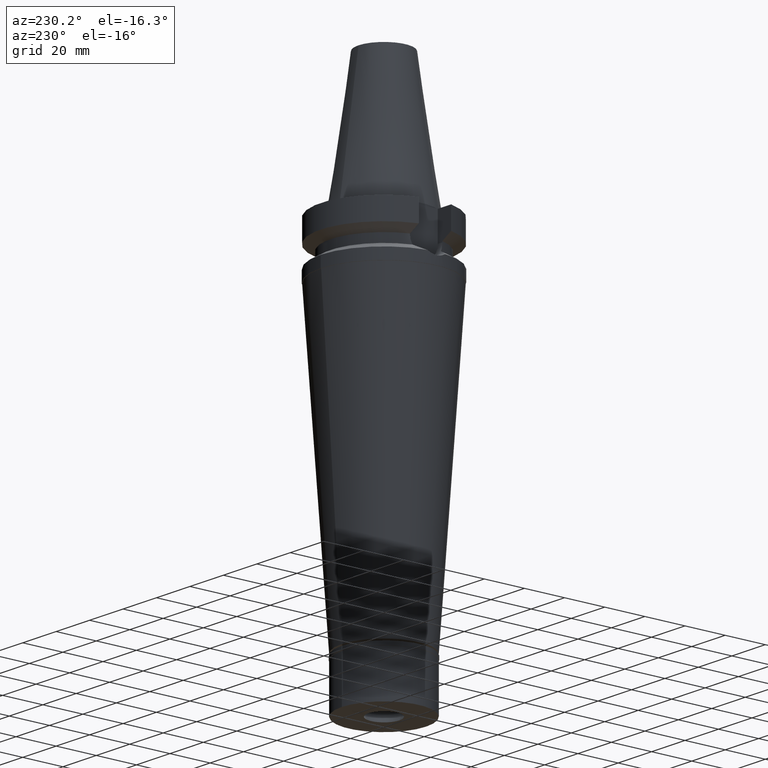
[diagram: clean part render]
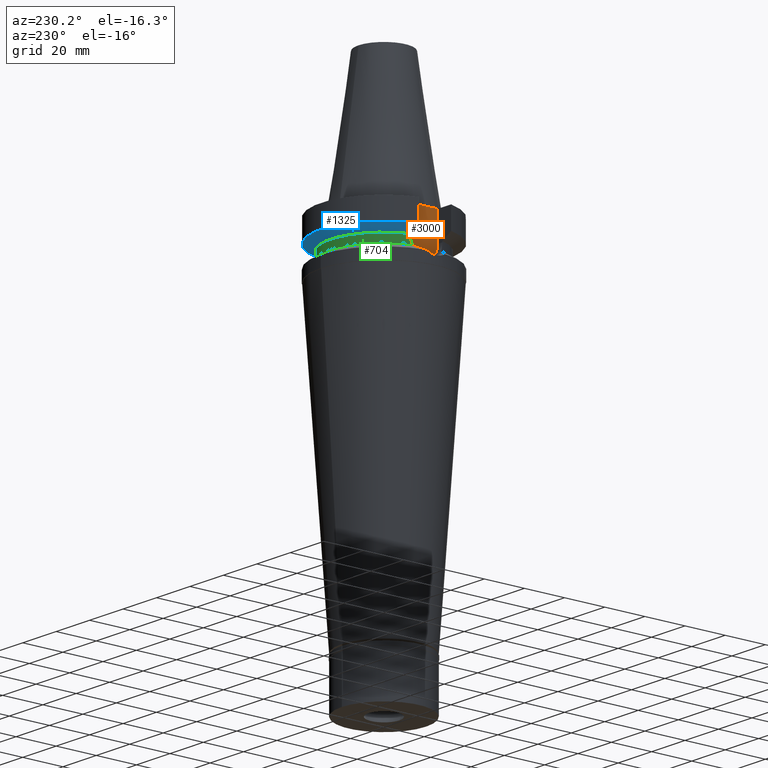
[diagram: same view with three faces highlighted in distinct colors, each labeled with its STEP entity id]
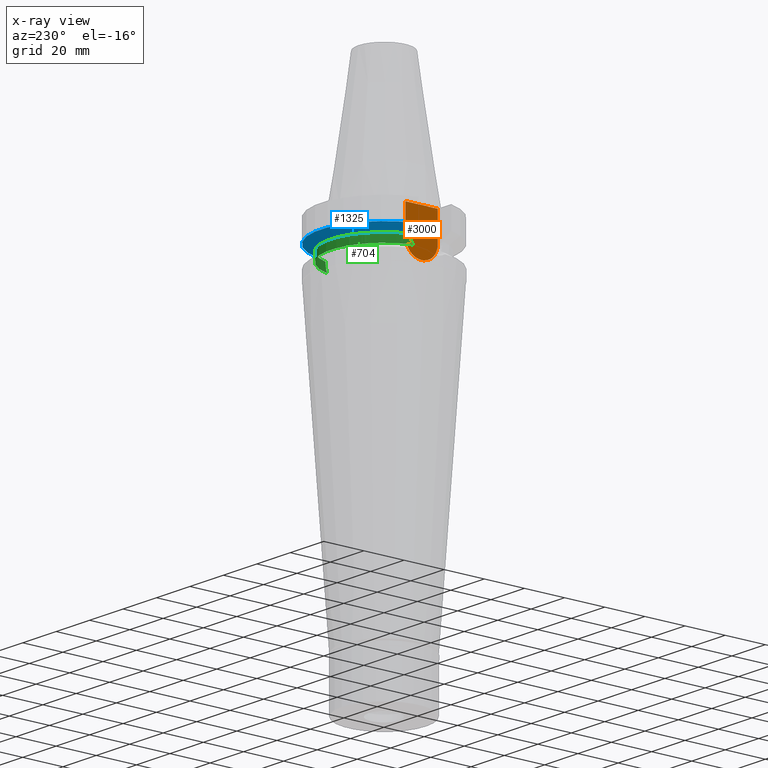
[diagram: x-ray of the same camera — body ghosted, the three highlighted faces saturated]
A machine part, auxiliary view with three faces highlighted in distinct colors.
The next image is the same camera in x-ray (body ghosted, the three faces saturated) — at least one of them is partly hidden behind the body in this view.
Their STEP definitions:

[orange] entity #3000 — the highlighted planar face has unit normal (-1, 0, 0).
#8 = CARTESIAN_POINT ( 'NONE',  ( -22.50000000000000000, 2.173748068486999793E-14, 0.0000000000000000000 ) ) ;
#51 = CARTESIAN_POINT ( 'NONE',  ( -22.50000000000000000, 1.807578675540999863E-14, -14.94999999999999929 ) ) ;
#72 = VECTOR ( 'NONE', #2554, 1000.000000000000000 ) ;
#79 = LINE ( 'NONE', #1552, #169 ) ;
#127 = AXIS2_PLACEMENT_3D ( 'NONE', #8, #459, #2849 ) ;
#169 = VECTOR ( 'NONE', #1756, 1000.000000000000000 ) ;
#459 = DIRECTION ( 'NONE',  ( -1.000000000000000000, 0.0000000000000000000, 0.0000000000000000000 ) ) ;
#640 = CARTESIAN_POINT ( 'NONE',  ( -22.50000000000000000, -8.050000000000000711, -1.000000000000000000 ) ) ;
#766 = VERTEX_POINT ( 'NONE', #2427 ) ;
#778 = DIRECTION ( 'NONE',  ( 1.000000000000000000, 0.0000000000000000000, 0.0000000000000000000 ) ) ;
#792 = LINE ( 'NONE', #1534, #2044 ) ;
#797 = DIRECTION ( 'NONE',  ( 0.0000000000000000000, 0.0000000000000000000, -1.000000000000000000 ) ) ;
#869 = EDGE_LOOP ( 'NONE', ( #971, #1440, #1310, #1805 ) ) ;
#897 = AXIS2_PLACEMENT_3D ( 'NONE', #51, #778, #797 ) ;
#971 = ORIENTED_EDGE ( 'NONE', *, *, #1486, .F. ) ;
#974 = PLANE ( 'NONE',  #127 ) ;
#1007 = EDGE_CURVE ( 'NONE', #766, #2276, #79, .T. ) ;
#1068 = CARTESIAN_POINT ( 'NONE',  ( -22.50000000000000000, 8.050000000000000711, -1.000000000000000000 ) ) ;
#1310 = ORIENTED_EDGE ( 'NONE', *, *, #1007, .F. ) ;
#1440 = ORIENTED_EDGE ( 'NONE', *, *, #2326, .F. ) ;
#1486 = EDGE_CURVE ( 'NONE', #2888, #1946, #792, .T. ) ;
#1534 = CARTESIAN_POINT ( 'NONE',  ( -22.50000000000000000, 8.050000000000000711, -14.94999999999999929 ) ) ;
#1552 = CARTESIAN_POINT ( 'NONE',  ( -22.50000000000000000, -8.050000000000000711, -1.000000000000000000 ) ) ;
#1605 = EDGE_CURVE ( 'NONE', #766, #1946, #3078, .T. ) ;
#1756 = DIRECTION ( 'NONE',  ( 0.0000000000000000000, 0.0000000000000000000, -1.000000000000000000 ) ) ;
#1758 = DIRECTION ( 'NONE',  ( 0.0000000000000000000, 0.0000000000000000000, 1.000000000000000000 ) ) ;
#1805 = ORIENTED_EDGE ( 'NONE', *, *, #1605, .T. ) ;
#1872 = CARTESIAN_POINT ( 'NONE',  ( -22.50000000000000000, 8.050000000000000711, -14.94999999999999929 ) ) ;
#1932 = FACE_OUTER_BOUND ( 'NONE', #869, .T. ) ;
#1946 = VERTEX_POINT ( 'NONE', #1068 ) ;
#1951 = CIRCLE ( 'NONE', #897, 8.050000000000000711 ) ;
#2044 = VECTOR ( 'NONE', #1758, 1000.000000000000000 ) ;
#2276 = VERTEX_POINT ( 'NONE', #2673 ) ;
#2326 = EDGE_CURVE ( 'NONE', #2276, #2888, #1951, .T. ) ;
#2427 = CARTESIAN_POINT ( 'NONE',  ( -22.50000000000000000, -8.050000000000000711, -1.000000000000000000 ) ) ;
#2554 = DIRECTION ( 'NONE',  ( 0.0000000000000000000, 1.000000000000000000, 0.0000000000000000000 ) ) ;
#2673 = CARTESIAN_POINT ( 'NONE',  ( -22.50000000000000000, -8.050000000000000711, -14.94999999999999929 ) ) ;
#2849 = DIRECTION ( 'NONE',  ( 0.0000000000000000000, 0.0000000000000000000, 1.000000000000000000 ) ) ;
#2888 = VERTEX_POINT ( 'NONE', #1872 ) ;
#3000 = ADVANCED_FACE ( 'NONE', ( #1932 ), #974, .T. ) ;
#3078 = LINE ( 'NONE', #640, #72 ) ;

[blue] entity #1325 — the highlighted conical surface has half-angle 60 deg.
#12 = EDGE_CURVE ( 'NONE', #904, #1028, #557, .T. ) ;
#205 = DIRECTION ( 'NONE',  ( 0.0000000000000000000, 0.0000000000000000000, 1.000000000000000000 ) ) ;
#259 = ORIENTED_EDGE ( 'NONE', *, *, #1166, .T. ) ;
#310 = CARTESIAN_POINT ( 'NONE',  ( 30.45402291365999758, 8.049999277899999583, -11.56551215646999964 ) ) ;
#425 = DIRECTION ( 'NONE',  ( 0.0000000000000000000, 0.0000000000000000000, -1.000000000000000000 ) ) ;
#498 = FACE_OUTER_BOUND ( 'NONE', #2585, .T. ) ;
#528 = AXIS2_PLACEMENT_3D ( 'NONE', #2633, #205, #1237 ) ;
#557 = B_SPLINE_CURVE_WITH_KNOTS ( 'NONE', 3,
 ( #1407, #1652, #1907, #1489 ),
 .UNSPECIFIED., .F., .F.,
 ( 4, 4 ),
 ( 0.0000000000000000000, 1.000000000000000000 ),
 .UNSPECIFIED. ) ;
#773 = DIRECTION ( 'NONE',  ( 0.0000000000000000000, 0.0000000000000000000, 1.000000000000000000 ) ) ;
#793 = AXIS2_PLACEMENT_3D ( 'NONE', #1902, #773, #1222 ) ;
#862 = ORIENTED_EDGE ( 'NONE', *, *, #1223, .F. ) ;
#904 = VERTEX_POINT ( 'NONE', #1080 ) ;
#909 = VERTEX_POINT ( 'NONE', #1769 ) ;
#1008 = CARTESIAN_POINT ( 'NONE',  ( 26.83754616961824979, 8.049990822617145270, -13.57774887560565880 ) ) ;
#1028 = VERTEX_POINT ( 'NONE', #2532 ) ;
#1080 = CARTESIAN_POINT ( 'NONE',  ( -25.24772216375000156, 8.050001586471001502, -14.45224487658000001 ) ) ;
#1166 = EDGE_CURVE ( 'NONE', #909, #2370, #2512, .T. ) ;
#1222 = DIRECTION ( 'NONE',  ( 0.0000000000000000000, 1.000000000000000000, 0.0000000000000000000 ) ) ;
#1223 = EDGE_CURVE ( 'NONE', #909, #1028, #3001, .T. ) ;
#1237 = DIRECTION ( 'NONE',  ( 0.0000000000000000000, 1.000000000000000000, 0.0000000000000000000 ) ) ;
#1325 = ADVANCED_FACE ( 'NONE', ( #498 ), #1389, .T. ) ;
#1389 = CONICAL_SURFACE ( 'NONE', #793, 29.00000000000000000, 1.047197551196400456 ) ;
#1391 = DIRECTION ( 'NONE',  ( -0.9527442516822307583, 0.3037735849057093818, 0.0000000000000000000 ) ) ;
#1407 = CARTESIAN_POINT ( 'NONE',  ( -25.24772216375000156, 8.050001586471001502, -14.45224487658000001 ) ) ;
#1489 = CARTESIAN_POINT ( 'NONE',  ( -30.45402162752999686, 8.050004143464001061, -11.56546833011000075 ) ) ;
#1560 = ORIENTED_EDGE ( 'NONE', *, *, #2184, .F. ) ;
#1652 = CARTESIAN_POINT ( 'NONE',  ( -26.83758148555827461, 8.050003176367949820, -13.57772735096166272 ) ) ;
#1769 = CARTESIAN_POINT ( 'NONE',  ( 30.45402291365999758, 8.049999277899999583, -11.56551215646999964 ) ) ;
#1902 = CARTESIAN_POINT ( 'NONE',  ( 0.0000000000000000000, 1.065333950388000029E-14, -13.00888132564000088 ) ) ;
#1907 = CARTESIAN_POINT ( 'NONE',  ( -28.57295871603884052, 8.050008281890470130, -12.61547480226907147 ) ) ;
#2087 = ORIENTED_EDGE ( 'NONE', *, *, #12, .T. ) ;
#2184 = EDGE_CURVE ( 'NONE', #904, #2370, #2255, .T. ) ;
#2244 = CARTESIAN_POINT ( 'NONE',  ( 28.57292329962934119, 8.049998556738891864, -12.61549605020568876 ) ) ;
#2255 = CIRCLE ( 'NONE', #3012, 26.50000000000000711 ) ;
#2265 = CARTESIAN_POINT ( 'NONE',  ( 25.24772413102000002, 8.049995416383998403, -14.45229202342000008 ) ) ;
#2370 = VERTEX_POINT ( 'NONE', #2655 ) ;
#2512 = B_SPLINE_CURVE_WITH_KNOTS ( 'NONE', 3,
 ( #310, #2244, #1008, #2265 ),
 .UNSPECIFIED., .F., .F.,
 ( 4, 4 ),
 ( 0.0000000000000000000, 1.000000000000000000 ),
 .UNSPECIFIED. ) ;
#2532 = CARTESIAN_POINT ( 'NONE',  ( -30.45402162752999686, 8.050004143464001061, -11.56546833011000075 ) ) ;
#2585 = EDGE_LOOP ( 'NONE', ( #862, #259, #1560, #2087 ) ) ;
#2633 = CARTESIAN_POINT ( 'NONE',  ( 0.0000000000000000000, 1.065333950388000029E-14, -11.56550565266999975 ) ) ;
#2655 = CARTESIAN_POINT ( 'NONE',  ( 25.24772413102000002, 8.049995416383998403, -14.45229202342000008 ) ) ;
#2796 = CARTESIAN_POINT ( 'NONE',  ( 0.0000000000000000000, 1.065333950388000029E-14, -14.45225699861000024 ) ) ;
#3001 = CIRCLE ( 'NONE', #528, 31.50000000000000000 ) ;
#3012 = AXIS2_PLACEMENT_3D ( 'NONE', #2796, #425, #1391 ) ;

[green] entity #704 — the highlighted cylindrical surface (partial cylindrical patch) has radius 26.5 mm, axis along (0, 0, -1).
#112 = CIRCLE ( 'NONE', #2794, 26.49999999999998224 ) ;
#163 = B_SPLINE_CURVE_WITH_KNOTS ( 'NONE', 3,
 ( #2175, #1748, #2722, #1557, #850, #1244, #502, #258, #1990, #983, #1942, #2538, #3141, #2674 ),
 .UNSPECIFIED., .F., .F.,
 ( 4, 2, 2, 1, 1, 2, 2, 4 ),
 ( 0.0000000000000000000, 0.2499999999999952260, 0.3749999999999935052, 0.4374999999999927280, 0.4687499999999922839, 0.4843749999999933942, 0.4999999999999945599, 1.000000000000000000 ),
 .UNSPECIFIED. ) ;
#258 = CARTESIAN_POINT ( 'NONE',  ( -25.31205759391836096, 7.845621557329947038, -16.75326793494481237 ) ) ;
#336 = VECTOR ( 'NONE', #1150, 1000.000000000000114 ) ;
#343 = ORIENTED_EDGE ( 'NONE', *, *, #2871, .F. ) ;
#398 = EDGE_CURVE ( 'NONE', #2280, #1113, #112, .T. ) ;
#425 = DIRECTION ( 'NONE',  ( 0.0000000000000000000, 0.0000000000000000000, -1.000000000000000000 ) ) ;
#430 = VERTEX_POINT ( 'NONE', #970 ) ;
#460 = CARTESIAN_POINT ( 'NONE',  ( 25.27269246206562414, 7.973290322419562592, -16.24535685341754387 ) ) ;
#461 = EDGE_CURVE ( 'NONE', #1929, #1113, #163, .T. ) ;
#468 = DIRECTION ( 'NONE',  ( 0.0000000000000000000, 0.0000000000000000000, 1.000000000000000000 ) ) ;
#478 = CARTESIAN_POINT ( 'NONE',  ( 25.33292553852030693, 7.777985707517056646, -17.02558215515331952 ) ) ;
#502 = CARTESIAN_POINT ( 'NONE',  ( -25.30215616128706202, 7.877576232114821053, -16.61085564858947095 ) ) ;
#625 = DIRECTION ( 'NONE',  ( 0.0000000000000000000, -1.000000000000000000, 0.0000000000000000000 ) ) ;
#704 = ADVANCED_FACE ( 'NONE', ( #865 ), #1871, .T. ) ;
#722 = CARTESIAN_POINT ( 'NONE',  ( 25.32419265906722927, 7.806329682139820036, -16.91574545217583392 ) ) ;
#739 = CARTESIAN_POINT ( 'NONE',  ( 25.32550226136657301, 7.802082245156339191, -16.93251888162851770 ) ) ;
#850 = CARTESIAN_POINT ( 'NONE',  ( -25.28049982587671352, 7.946985634402506271, -16.24435369772021076 ) ) ;
#865 = FACE_OUTER_BOUND ( 'NONE', #1610, .T. ) ;
#904 = VERTEX_POINT ( 'NONE', #1080 ) ;
#924 = ORIENTED_EDGE ( 'NONE', *, *, #2184, .T. ) ;
#946 = VECTOR ( 'NONE', #2880, 1000.000000000000114 ) ;
#964 = CARTESIAN_POINT ( 'NONE',  ( 25.48481820018459132, 7.266687417048629527, -18.43221401829459083 ) ) ;
#970 = CARTESIAN_POINT ( 'NONE',  ( 25.24772266958000344, 8.050000000000000711, -14.94999999999999929 ) ) ;
#983 = CARTESIAN_POINT ( 'NONE',  ( -25.31954463780457942, 7.821394976198594584, -16.85491936549410852 ) ) ;
#1080 = CARTESIAN_POINT ( 'NONE',  ( -25.24772216375000156, 8.050001586471001502, -14.45224487658000001 ) ) ;
#1113 = VERTEX_POINT ( 'NONE', #2232 ) ;
#1150 = DIRECTION ( 'NONE',  ( 2.936344683098950112E-06, -9.209448786821828654E-06, 0.9999999999532819261 ) ) ;
#1163 = LINE ( 'NONE', #1414, #946 ) ;
#1210 = CARTESIAN_POINT ( 'NONE',  ( 25.37572817766058364, 7.637723572221805313, -17.49814693646417751 ) ) ;
#1238 = EDGE_CURVE ( 'NONE', #2280, #430, #2622, .T. ) ;
#1244 = CARTESIAN_POINT ( 'NONE',  ( -25.29454717857531065, 7.902012029789332814, -16.48868902742409048 ) ) ;
#1391 = DIRECTION ( 'NONE',  ( -0.9527442516822307583, 0.3037735849057093818, 0.0000000000000000000 ) ) ;
#1414 = CARTESIAN_POINT ( 'NONE',  ( -25.24772216375000156, 8.050001586471001502, -14.45224487658000001 ) ) ;
#1446 = CARTESIAN_POINT ( 'NONE',  ( 25.39164478449751527, 7.584820969894079390, -17.65194245036779108 ) ) ;
#1557 = CARTESIAN_POINT ( 'NONE',  ( -25.27269574104415994, 7.971769475022838947, -16.08146184953483271 ) ) ;
#1610 = EDGE_LOOP ( 'NONE', ( #924, #343, #1699, #1703, #2493, #2602 ) ) ;
#1699 = ORIENTED_EDGE ( 'NONE', *, *, #1238, .F. ) ;
#1703 = ORIENTED_EDGE ( 'NONE', *, *, #398, .T. ) ;
#1709 = CARTESIAN_POINT ( 'NONE',  ( 25.34387967354898663, 7.742345491372086386, -17.15662736176078695 ) ) ;
#1748 = CARTESIAN_POINT ( 'NONE',  ( -25.24772266957999634, 8.050000000000013145, -15.27000127552675401 ) ) ;
#1784 = AXIS2_PLACEMENT_3D ( 'NONE', #1818, #3061, #625 ) ;
#1804 = LINE ( 'NONE', #2065, #336 ) ;
#1818 = CARTESIAN_POINT ( 'NONE',  ( 0.0000000000000000000, 2.183484010539999864E-14, 78.29500000000000171 ) ) ;
#1871 = CYLINDRICAL_SURFACE ( 'NONE', #1784, 26.50000000000000000 ) ;
#1879 = CARTESIAN_POINT ( 'NONE',  ( 0.0000000000000000000, 0.0000000000000000000, -18.74774300138999905 ) ) ;
#1929 = VERTEX_POINT ( 'NONE', #1979 ) ;
#1942 = CARTESIAN_POINT ( 'NONE',  ( -25.32121872273786423, 7.815971166074344723, -16.87703378351201522 ) ) ;
#1979 = CARTESIAN_POINT ( 'NONE',  ( -25.24772266958000344, 8.050000000000000711, -14.94999999999999929 ) ) ;
#1989 = CARTESIAN_POINT ( 'NONE',  ( 25.53175183775000079, 7.097862220092999941, -18.74774300138999905 ) ) ;
#1990 = CARTESIAN_POINT ( 'NONE',  ( -25.31652055493196940, 7.831184758220314457, -16.81426458566293292 ) ) ;
#2065 = CARTESIAN_POINT ( 'NONE',  ( 25.24772266958000344, 8.050000000000000711, -14.94999999999999929 ) ) ;
#2170 = CARTESIAN_POINT ( 'NONE',  ( 25.35411833098890355, 7.708843546315534034, -17.27003765536262136 ) ) ;
#2175 = CARTESIAN_POINT ( 'NONE',  ( -25.24772266958000344, 8.050000000000000711, -14.94999999999999929 ) ) ;
#2184 = EDGE_CURVE ( 'NONE', #904, #2370, #2255, .T. ) ;
#2232 = CARTESIAN_POINT ( 'NONE',  ( -25.53175183775000079, 7.097862220092999941, -18.74774300138999905 ) ) ;
#2255 = CIRCLE ( 'NONE', #3012, 26.50000000000000711 ) ;
#2280 = VERTEX_POINT ( 'NONE', #1989 ) ;
#2370 = VERTEX_POINT ( 'NONE', #2655 ) ;
#2429 = CARTESIAN_POINT ( 'NONE',  ( 25.24772266958000344, 8.050000000000000711, -14.94999999999999929 ) ) ;
#2493 = ORIENTED_EDGE ( 'NONE', *, *, #461, .F. ) ;
#2538 = CARTESIAN_POINT ( 'NONE',  ( -25.36818304348085107, 7.663708172131618923, -17.48836484279771142 ) ) ;
#2602 = ORIENTED_EDGE ( 'NONE', *, *, #3023, .F. ) ;
#2622 = B_SPLINE_CURVE_WITH_KNOTS ( 'NONE', 3,
 ( #2914, #964, #2896, #1446, #1210, #2170, #1709, #478, #2669, #739, #722, #460, #2685, #2429 ),
 .UNSPECIFIED., .F., .F.,
 ( 4, 2, 2, 1, 1, 2, 2, 4 ),
 ( 0.0000000000000000000, 0.2500000000000158207, 0.3750000000000225930, 0.4375000000000273670, 0.4687500000000284772, 0.4843750000000276446, 0.5000000000000267564, 1.000000000000000000 ),
 .UNSPECIFIED. ) ;
#2655 = CARTESIAN_POINT ( 'NONE',  ( 25.24772413102000002, 8.049995416383998403, -14.45229202342000008 ) ) ;
#2669 = CARTESIAN_POINT ( 'NONE',  ( 25.32844325893327664, 7.792538688759439225, -16.96970524096579425 ) ) ;
#2674 = CARTESIAN_POINT ( 'NONE',  ( -25.53175183775000079, 7.097862220092999941, -18.74774300138999905 ) ) ;
#2685 = CARTESIAN_POINT ( 'NONE',  ( 25.24772266957999989, 8.050000000000000711, -15.58999073686770664 ) ) ;
#2722 = CARTESIAN_POINT ( 'NONE',  ( -25.25396593744603990, 8.030896968456877616, -15.59377931114947025 ) ) ;
#2794 = AXIS2_PLACEMENT_3D ( 'NONE', #1879, #468, #2839 ) ;
#2796 = CARTESIAN_POINT ( 'NONE',  ( 0.0000000000000000000, 1.065333950388000029E-14, -14.45225699861000024 ) ) ;
#2839 = DIRECTION ( 'NONE',  ( 0.9634623335000935818, 0.2678438573619981722, 0.0000000000000000000 ) ) ;
#2871 = EDGE_CURVE ( 'NONE', #430, #2370, #1804, .T. ) ;
#2880 = DIRECTION ( 'NONE',  ( -1.016224662221004237E-06, -3.187251308830015568E-06, -0.9999999999944043649 ) ) ;
#2896 = CARTESIAN_POINT ( 'NONE',  ( 25.44392473217580530, 7.408251102513793818, -18.11706870842442285 ) ) ;
#2914 = CARTESIAN_POINT ( 'NONE',  ( 25.53175183775000079, 7.097862220092999941, -18.74774300138999905 ) ) ;
#3012 = AXIS2_PLACEMENT_3D ( 'NONE', #2796, #425, #1391 ) ;
#3023 = EDGE_CURVE ( 'NONE', #904, #1929, #1163, .T. ) ;
#3061 = DIRECTION ( 'NONE',  ( 0.0000000000000000000, 0.0000000000000000000, -1.000000000000000000 ) ) ;
#3141 = CARTESIAN_POINT ( 'NONE',  ( -25.43788636140667947, 7.435506143574370341, -18.11669712823316658 ) ) ;